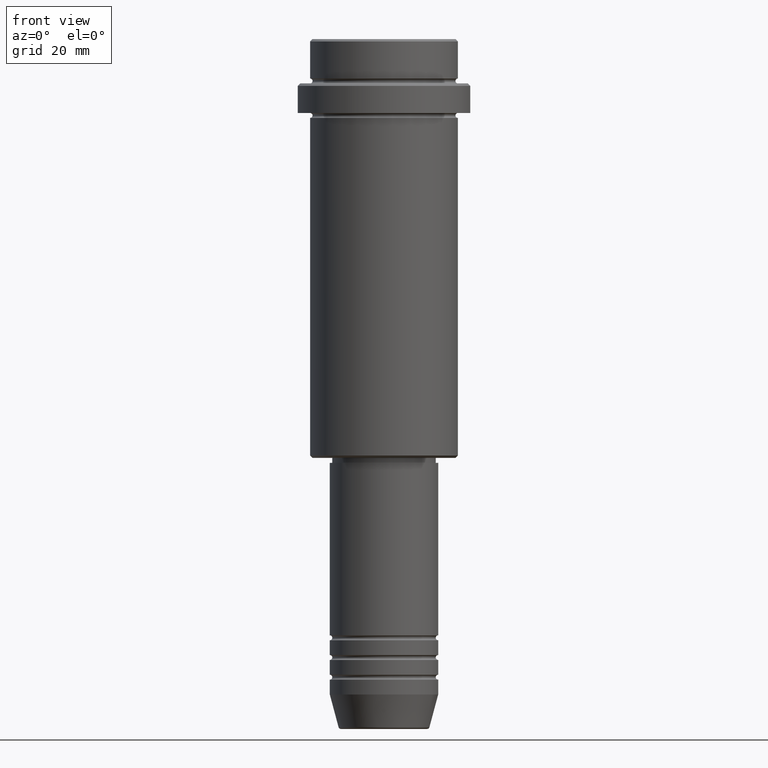
[diagram: clean part render]
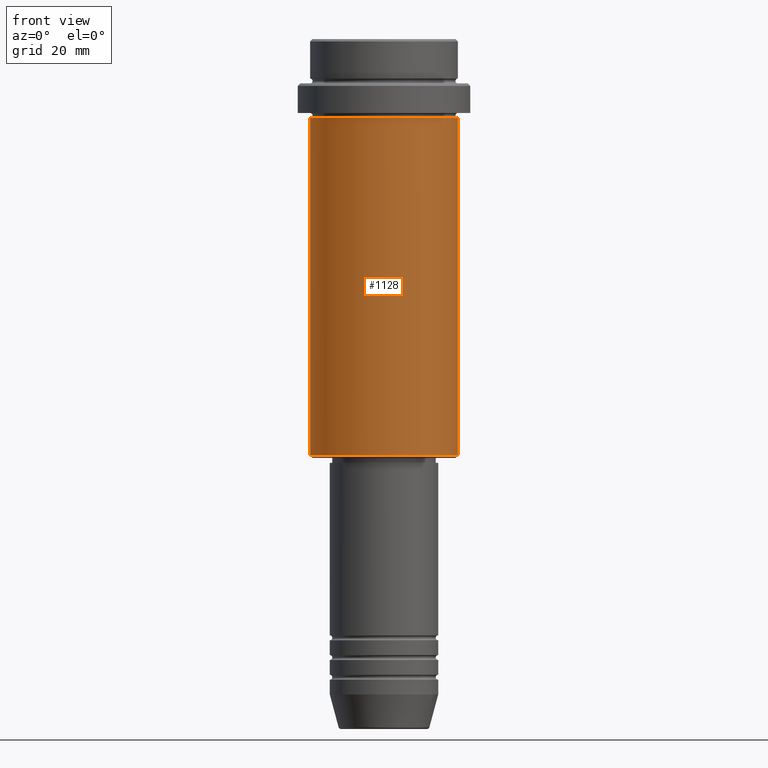
[diagram: same view with one face highlighted and labeled with its STEP entity id]
A machine part, front view. The second image highlights one B-rep face of the part: STEP entity #1128.
In plain terms, the highlighted cylindrical surface (partial cylindrical patch) has radius 15 mm, axis along (-0, -0, 1).
Its self-contained STEP definition (entity closure, byte-faithful):
#50 = LINE ( 'NONE', #1052, #940 ) ;
#56 = AXIS2_PLACEMENT_3D ( 'NONE', #170, #964, #278 ) ;
#70 = DIRECTION ( 'NONE',  ( -1.000000000000000000, 0.000000000000000000, 0.000000000000000000 ) ) ;
#94 = DIRECTION ( 'NONE',  ( -0.000000000000000000, -0.000000000000000000, 1.000000000000000000 ) ) ;
#104 = DIRECTION ( 'NONE',  ( -0.000000000000000000, -0.000000000000000000, 1.000000000000000000 ) ) ;
#170 = CARTESIAN_POINT ( 'NONE',  ( 0.000000000000000000, 0.000000000000000000, -16.00000000000000000 ) ) ;
#176 = EDGE_CURVE ( 'NONE', #723, #1224, #998, .T. ) ;
#208 = CARTESIAN_POINT ( 'NONE',  ( 0.000000000000000000, 0.000000000000000000, 0.000000000000000000 ) ) ;
#216 = DIRECTION ( 'NONE',  ( 1.000000000000000000, 0.000000000000000000, 0.000000000000000000 ) ) ;
#225 = VECTOR ( 'NONE', #104, 1000.000000000000000 ) ;
#234 = EDGE_CURVE ( 'NONE', #468, #1353, #50, .T. ) ;
#278 = DIRECTION ( 'NONE',  ( 1.000000000000000000, 0.000000000000000000, 0.000000000000000000 ) ) ;
#313 = FACE_OUTER_BOUND ( 'NONE', #1217, .T. ) ;
#348 = CARTESIAN_POINT ( 'NONE',  ( -15.00000000000000000, 1.836970198721029589E-15, 0.000000000000000000 ) ) ;
#365 = DIRECTION ( 'NONE',  ( -0.000000000000000000, -0.000000000000000000, 1.000000000000000000 ) ) ;
#386 = CIRCLE ( 'NONE', #608, 15.00000000000000000 ) ;
#468 = VERTEX_POINT ( 'NONE', #955 ) ;
#510 = ORIENTED_EDGE ( 'NONE', *, *, #176, .F. ) ;
#513 = CARTESIAN_POINT ( 'NONE',  ( -15.00000000000000000, 1.836970198721029589E-15, -84.50000000000001421 ) ) ;
#608 = AXIS2_PLACEMENT_3D ( 'NONE', #918, #1060, #70 ) ;
#676 = AXIS2_PLACEMENT_3D ( 'NONE', #208, #94, #216 ) ;
#681 = EDGE_CURVE ( 'NONE', #1224, #1353, #1099, .T. ) ;
#723 = VERTEX_POINT ( 'NONE', #513 ) ;
#731 = ORIENTED_EDGE ( 'NONE', *, *, #234, .T. ) ;
#762 = ORIENTED_EDGE ( 'NONE', *, *, #1197, .T. ) ;
#802 = CARTESIAN_POINT ( 'NONE',  ( -15.00000000000000355, 1.836970198721029983E-15, -16.00000000000000000 ) ) ;
#810 = CARTESIAN_POINT ( 'NONE',  ( 15.00000000000000178, 0.000000000000000000, -16.00000000000000000 ) ) ;
#918 = CARTESIAN_POINT ( 'NONE',  ( 0.000000000000000000, 0.000000000000000000, -84.50000000000001421 ) ) ;
#940 = VECTOR ( 'NONE', #365, 1000.000000000000000 ) ;
#955 = CARTESIAN_POINT ( 'NONE',  ( 15.00000000000000000, 0.000000000000000000, -84.50000000000001421 ) ) ;
#964 = DIRECTION ( 'NONE',  ( -0.000000000000000000, -0.000000000000000000, 1.000000000000000000 ) ) ;
#998 = LINE ( 'NONE', #348, #225 ) ;
#1052 = CARTESIAN_POINT ( 'NONE',  ( 15.00000000000000000, 0.000000000000000000, 0.000000000000000000 ) ) ;
#1060 = DIRECTION ( 'NONE',  ( -0.000000000000000000, -0.000000000000000000, 1.000000000000000000 ) ) ;
#1099 = CIRCLE ( 'NONE', #56, 15.00000000000000178 ) ;
#1128 = ADVANCED_FACE ( 'NONE', ( #313 ), #1196, .T. ) ;
#1196 = CYLINDRICAL_SURFACE ( 'NONE', #676, 15.00000000000000000 ) ;
#1197 = EDGE_CURVE ( 'NONE', #723, #468, #386, .T. ) ;
#1217 = EDGE_LOOP ( 'NONE', ( #510, #762, #731, #1395 ) ) ;
#1224 = VERTEX_POINT ( 'NONE', #802 ) ;
#1353 = VERTEX_POINT ( 'NONE', #810 ) ;
#1395 = ORIENTED_EDGE ( 'NONE', *, *, #681, .F. ) ;